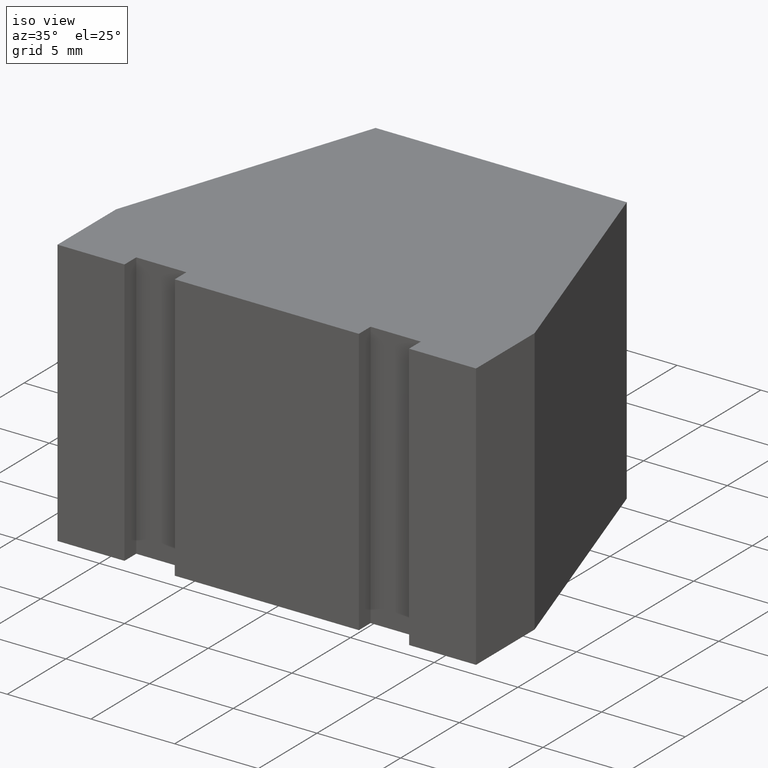
[diagram: clean part render]
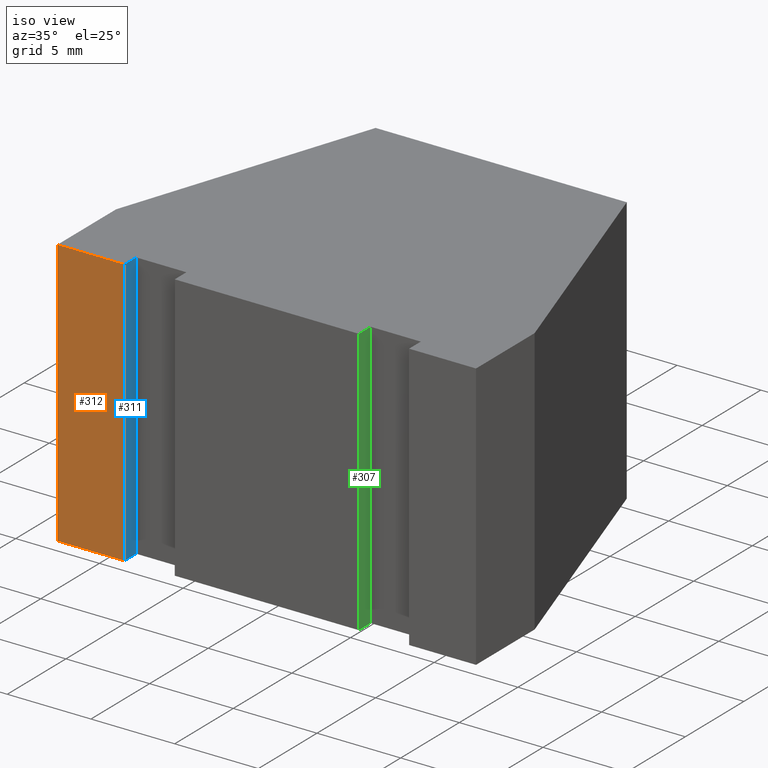
[diagram: same view with three faces highlighted in distinct colors, each labeled with its STEP entity id]
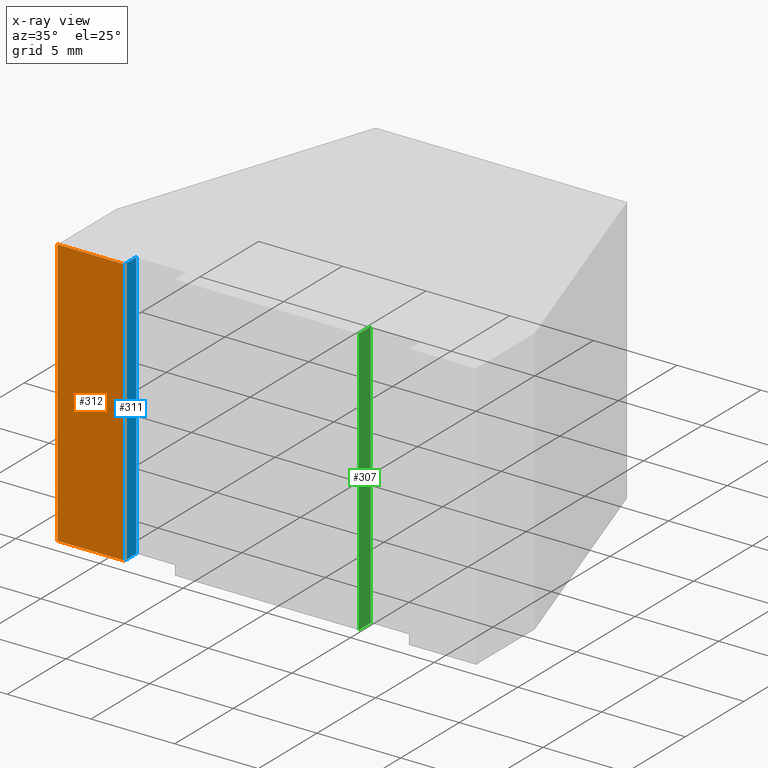
[diagram: x-ray of the same camera — body ghosted, the three highlighted faces saturated]
A machine part, iso view with three faces highlighted in distinct colors.
The next image is the same camera in x-ray (body ghosted, the three faces saturated) — at least one of them is partly hidden behind the body in this view.
Their STEP definitions:

[orange] entity #312 — the highlighted planar face has unit normal (0, -1, 0).
#26=FACE_OUTER_BOUND('',#42,.T.);
#42=EDGE_LOOP('',(#246,#247,#248,#249));
#59=LINE('',#457,#101);
#78=LINE('',#494,#120);
#79=LINE('',#497,#121);
#80=LINE('',#498,#122);
#101=VECTOR('',#372,10.);
#120=VECTOR('',#405,10.);
#121=VECTOR('',#408,10.);
#122=VECTOR('',#409,10.);
#143=VERTEX_POINT('',#454);
#144=VERTEX_POINT('',#456);
#155=VERTEX_POINT('',#492);
#156=VERTEX_POINT('',#496);
#171=EDGE_CURVE('',#144,#143,#59,.T.);
#190=EDGE_CURVE('',#155,#143,#78,.T.);
#191=EDGE_CURVE('',#155,#156,#79,.T.);
#192=EDGE_CURVE('',#156,#144,#80,.T.);
#246=ORIENTED_EDGE('',*,*,#191,.T.);
#247=ORIENTED_EDGE('',*,*,#192,.T.);
#248=ORIENTED_EDGE('',*,*,#171,.T.);
#249=ORIENTED_EDGE('',*,*,#190,.F.);
#296=PLANE('',#351);
#312=ADVANCED_FACE('',(#26),#296,.T.);
#351=AXIS2_PLACEMENT_3D('',#495,#406,#407);
#372=DIRECTION('',(1.,0.,0.));
#405=DIRECTION('',(0.,0.,-1.));
#406=DIRECTION('center_axis',(0.,-1.,0.));
#407=DIRECTION('ref_axis',(0.,0.,-1.));
#408=DIRECTION('',(-1.,0.,0.));
#409=DIRECTION('',(0.,0.,-1.));
#454=CARTESIAN_POINT('',(-8.5,0.,-8.));
#456=CARTESIAN_POINT('',(-12.5,0.,-8.));
#457=CARTESIAN_POINT('',(-8.5,0.,-8.));
#492=CARTESIAN_POINT('',(-8.5,0.,8.));
#494=CARTESIAN_POINT('',(-8.5,0.,0.));
#495=CARTESIAN_POINT('Origin',(-8.5,0.,0.));
#496=CARTESIAN_POINT('',(-12.5,0.,8.));
#497=CARTESIAN_POINT('',(-8.5,0.,8.));
#498=CARTESIAN_POINT('',(-12.5,0.,0.));

[blue] entity #311 — the highlighted planar face has unit normal (1, 0, 0).
#25=FACE_OUTER_BOUND('',#41,.T.);
#41=EDGE_LOOP('',(#242,#243,#244,#245));
#58=LINE('',#455,#100);
#76=LINE('',#490,#118);
#77=LINE('',#493,#119);
#78=LINE('',#494,#120);
#100=VECTOR('',#371,10.);
#118=VECTOR('',#401,10.);
#119=VECTOR('',#404,10.);
#120=VECTOR('',#405,10.);
#142=VERTEX_POINT('',#452);
#143=VERTEX_POINT('',#454);
#154=VERTEX_POINT('',#488);
#155=VERTEX_POINT('',#492);
#170=EDGE_CURVE('',#143,#142,#58,.T.);
#188=EDGE_CURVE('',#154,#142,#76,.T.);
#189=EDGE_CURVE('',#154,#155,#77,.T.);
#190=EDGE_CURVE('',#155,#143,#78,.T.);
#242=ORIENTED_EDGE('',*,*,#189,.T.);
#243=ORIENTED_EDGE('',*,*,#190,.T.);
#244=ORIENTED_EDGE('',*,*,#170,.T.);
#245=ORIENTED_EDGE('',*,*,#188,.F.);
#295=PLANE('',#350);
#311=ADVANCED_FACE('',(#25),#295,.T.);
#350=AXIS2_PLACEMENT_3D('',#491,#402,#403);
#371=DIRECTION('',(0.,1.,0.));
#401=DIRECTION('',(0.,0.,-1.));
#402=DIRECTION('center_axis',(1.,0.,0.));
#403=DIRECTION('ref_axis',(0.,0.,-1.));
#404=DIRECTION('',(0.,-1.,0.));
#405=DIRECTION('',(0.,0.,-1.));
#452=CARTESIAN_POINT('',(-8.5,1.,-8.));
#454=CARTESIAN_POINT('',(-8.5,0.,-8.));
#455=CARTESIAN_POINT('',(-8.5,1.,-8.));
#488=CARTESIAN_POINT('',(-8.5,1.,8.));
#490=CARTESIAN_POINT('',(-8.5,1.,0.));
#491=CARTESIAN_POINT('Origin',(-8.5,1.,0.));
#492=CARTESIAN_POINT('',(-8.5,0.,8.));
#493=CARTESIAN_POINT('',(-8.5,1.,8.));
#494=CARTESIAN_POINT('',(-8.5,0.,0.));

[green] entity #307 — the highlighted planar face has unit normal (1, 0, 0).
#21=FACE_OUTER_BOUND('',#37,.T.);
#37=EDGE_LOOP('',(#226,#227,#228,#229));
#54=LINE('',#447,#96);
#68=LINE('',#474,#110);
#69=LINE('',#477,#111);
#70=LINE('',#478,#112);
#96=VECTOR('',#367,10.);
#110=VECTOR('',#385,10.);
#111=VECTOR('',#388,10.);
#112=VECTOR('',#389,10.);
#138=VERTEX_POINT('',#444);
#139=VERTEX_POINT('',#446);
#150=VERTEX_POINT('',#472);
#151=VERTEX_POINT('',#476);
#166=EDGE_CURVE('',#139,#138,#54,.T.);
#180=EDGE_CURVE('',#150,#138,#68,.T.);
#181=EDGE_CURVE('',#150,#151,#69,.T.);
#182=EDGE_CURVE('',#151,#139,#70,.T.);
#226=ORIENTED_EDGE('',*,*,#181,.T.);
#227=ORIENTED_EDGE('',*,*,#182,.T.);
#228=ORIENTED_EDGE('',*,*,#166,.T.);
#229=ORIENTED_EDGE('',*,*,#180,.F.);
#291=PLANE('',#346);
#307=ADVANCED_FACE('',(#21),#291,.T.);
#346=AXIS2_PLACEMENT_3D('',#475,#386,#387);
#367=DIRECTION('',(0.,1.,0.));
#385=DIRECTION('',(0.,0.,-1.));
#386=DIRECTION('center_axis',(1.,0.,0.));
#387=DIRECTION('ref_axis',(0.,0.,-1.));
#388=DIRECTION('',(0.,-1.,0.));
#389=DIRECTION('',(0.,0.,-1.));
#444=CARTESIAN_POINT('',(5.5,1.,-8.));
#446=CARTESIAN_POINT('',(5.5,0.,-8.));
#447=CARTESIAN_POINT('',(5.5,1.,-8.));
#472=CARTESIAN_POINT('',(5.5,1.,8.));
#474=CARTESIAN_POINT('',(5.5,1.,0.));
#475=CARTESIAN_POINT('Origin',(5.5,1.,0.));
#476=CARTESIAN_POINT('',(5.5,0.,8.));
#477=CARTESIAN_POINT('',(5.5,1.,8.));
#478=CARTESIAN_POINT('',(5.5,0.,0.));